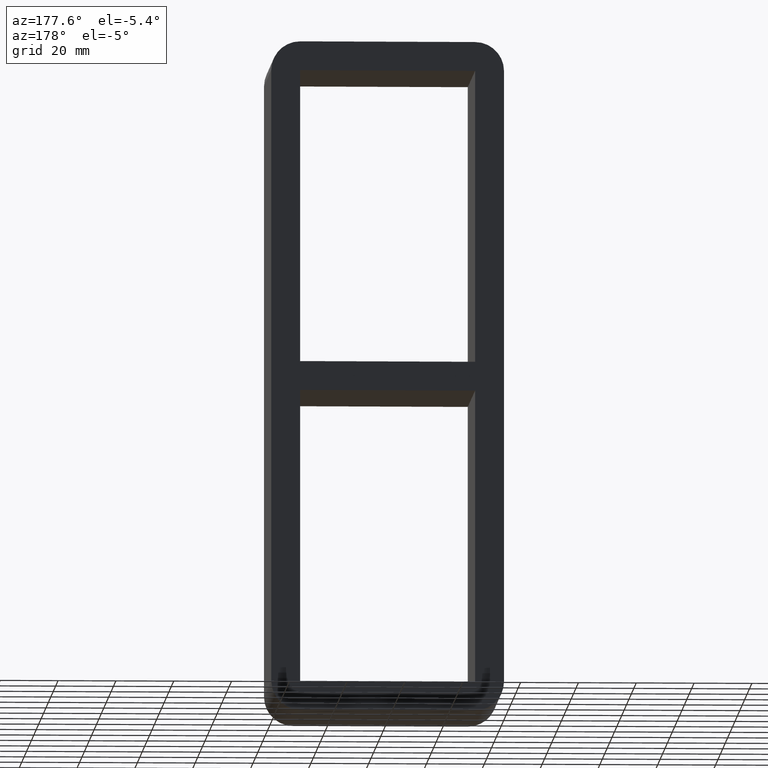
[diagram: clean part render]
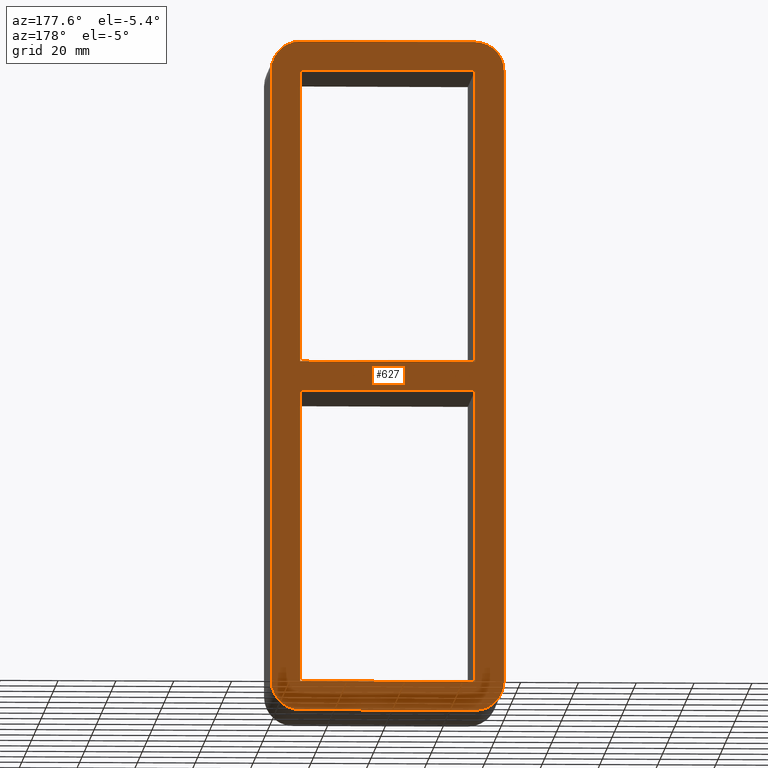
[diagram: same view with one face highlighted and labeled with its STEP entity id]
A machine part, auxiliary view. The second image highlights one B-rep face of the part: STEP entity #627.
In plain terms, the highlighted planar face has unit normal (0, 1, 0).
Its self-contained STEP definition (entity closure, byte-faithful):
#83=CARTESIAN_POINT('',(-30.24999999999967,57.0,-5.000000000009379));
#84=VERTEX_POINT('',#83);
#91=CARTESIAN_POINT('',(30.249999999996358,57.0,-5.000000000009397));
#92=VERTEX_POINT('',#91);
#93=CARTESIAN_POINT('',(30.249999999996362,57.0,-5.000000000009397));
#94=DIRECTION('',(-1.0,0.0,0.0));
#95=VECTOR('',#94,60.499999999996028);
#96=LINE('',#93,#95);
#97=EDGE_CURVE('',#92,#84,#96,.T.);
#123=CARTESIAN_POINT('',(30.249999999999893,57.0,5.0));
#124=VERTEX_POINT('',#123);
#131=CARTESIAN_POINT('',(-30.24999999999967,57.0,5.0));
#132=VERTEX_POINT('',#131);
#133=CARTESIAN_POINT('',(-30.24999999999967,57.0,5.0));
#134=DIRECTION('',(1.0,0.0,0.0));
#135=VECTOR('',#134,60.499999999999559);
#136=LINE('',#133,#135);
#137=EDGE_CURVE('',#132,#124,#136,.T.);
#154=CARTESIAN_POINT('',(-30.250000000000004,57.0,106.00000000000001));
#155=VERTEX_POINT('',#154);
#156=CARTESIAN_POINT('',(-30.25,57.0,106.00000000000003));
#157=DIRECTION('',(0.0,0.0,-1.0));
#158=VECTOR('',#157,101.00000000000003);
#159=LINE('',#156,#158);
#160=EDGE_CURVE('',#155,#132,#159,.T.);
#185=CARTESIAN_POINT('',(30.250000000000004,57.0,-106.00000000000001));
#186=VERTEX_POINT('',#185);
#187=CARTESIAN_POINT('',(30.250000000000004,57.0,-106.00000000000003));
#188=DIRECTION('',(0.0,0.0,1.0));
#189=VECTOR('',#188,100.99999999999062);
#190=LINE('',#187,#189);
#191=EDGE_CURVE('',#186,#92,#190,.T.);
#224=CARTESIAN_POINT('',(30.250000000000004,57.0,106.00000000000001));
#225=VERTEX_POINT('',#224);
#232=CARTESIAN_POINT('',(30.250000000000004,57.0,5.0));
#233=DIRECTION('',(0.0,0.0,1.0));
#234=VECTOR('',#233,101.00000000000001);
#235=LINE('',#232,#234);
#236=EDGE_CURVE('',#124,#225,#235,.T.);
#246=CARTESIAN_POINT('',(30.250000000000004,57.0,-116.00000000000001));
#247=VERTEX_POINT('',#246);
#248=CARTESIAN_POINT('',(40.25,57.0,-106.00000000000001));
#249=VERTEX_POINT('',#248);
#250=CARTESIAN_POINT('',(30.250000000000004,57.0,-106.00000000000001));
#251=DIRECTION('',(0.0,-1.0,0.0));
#252=DIRECTION('',(0.707106781186547,0.0,-0.707106781186547));
#253=AXIS2_PLACEMENT_3D('',#250,#251,#252);
#254=CIRCLE('',#253,9.999999999999998);
#255=EDGE_CURVE('',#247,#249,#254,.T.);
#384=CARTESIAN_POINT('',(40.25,57.0,106.00000000000001));
#385=VERTEX_POINT('',#384);
#386=CARTESIAN_POINT('',(40.25,57.0,106.00000000000001));
#387=DIRECTION('',(0.0,0.0,-1.0));
#388=VECTOR('',#387,212.00000000000003);
#389=LINE('',#386,#388);
#390=EDGE_CURVE('',#385,#249,#389,.T.);
#409=CARTESIAN_POINT('',(30.250000000000004,57.0,116.00000000000001));
#410=VERTEX_POINT('',#409);
#411=CARTESIAN_POINT('',(30.250000000000004,57.0,106.00000000000001));
#412=DIRECTION('',(0.0,-1.0,0.0));
#413=DIRECTION('',(0.707106781186547,0.0,0.707106781186547));
#414=AXIS2_PLACEMENT_3D('',#411,#412,#413);
#415=CIRCLE('',#414,9.999999999999998);
#416=EDGE_CURVE('',#385,#410,#415,.T.);
#432=CARTESIAN_POINT('',(-40.25,57.0,-106.00000000000001));
#433=VERTEX_POINT('',#432);
#434=CARTESIAN_POINT('',(-30.250000000000004,57.0,-116.00000000000001));
#435=VERTEX_POINT('',#434);
#436=CARTESIAN_POINT('',(-30.250000000000004,57.0,-106.00000000000001));
#437=DIRECTION('',(0.0,-1.0,0.0));
#438=DIRECTION('',(-0.707106781186547,0.0,-0.707106781186547));
#439=AXIS2_PLACEMENT_3D('',#436,#437,#438);
#440=CIRCLE('',#439,9.999999999999998);
#441=EDGE_CURVE('',#433,#435,#440,.T.);
#466=CARTESIAN_POINT('',(-40.25,57.0,106.00000000000001));
#467=VERTEX_POINT('',#466);
#474=CARTESIAN_POINT('',(-40.25,57.0,-106.00000000000001));
#475=DIRECTION('',(0.0,0.0,1.0));
#476=VECTOR('',#475,212.00000000000003);
#477=LINE('',#474,#476);
#478=EDGE_CURVE('',#433,#467,#477,.T.);
#488=CARTESIAN_POINT('',(-30.250000000000004,57.0,116.00000000000001));
#489=VERTEX_POINT('',#488);
#490=CARTESIAN_POINT('',(-30.250000000000004,57.0,106.00000000000001));
#491=DIRECTION('',(0.0,-1.0,0.0));
#492=DIRECTION('',(-0.707106781186547,0.0,0.707106781186547));
#493=AXIS2_PLACEMENT_3D('',#490,#491,#492);
#494=CIRCLE('',#493,9.999999999999998);
#495=EDGE_CURVE('',#489,#467,#494,.T.);
#514=CARTESIAN_POINT('',(-30.25,57.0,116.00000000000001));
#515=DIRECTION('',(1.0,0.0,0.0));
#516=VECTOR('',#515,60.5);
#517=LINE('',#514,#516);
#518=EDGE_CURVE('',#489,#410,#517,.T.);
#533=CARTESIAN_POINT('',(30.250000000000007,57.0,106.00000000000001));
#534=DIRECTION('',(-1.0,0.0,0.0));
#535=VECTOR('',#534,60.500000000000014);
#536=LINE('',#533,#535);
#537=EDGE_CURVE('',#225,#155,#536,.T.);
#549=CARTESIAN_POINT('',(-30.250000000000004,57.0,-106.00000000000001));
#550=VERTEX_POINT('',#549);
#557=CARTESIAN_POINT('',(-30.25,57.0,-5.000000000009379));
#558=DIRECTION('',(0.0,0.0,-1.0));
#559=VECTOR('',#558,100.99999999999064);
#560=LINE('',#557,#559);
#561=EDGE_CURVE('',#84,#550,#560,.T.);
#574=CARTESIAN_POINT('',(-30.250000000000007,57.0,-106.00000000000001));
#575=DIRECTION('',(1.0,0.0,0.0));
#576=VECTOR('',#575,60.500000000000014);
#577=LINE('',#574,#576);
#578=EDGE_CURVE('',#550,#186,#577,.T.);
#591=CARTESIAN_POINT('',(30.25,57.0,-116.00000000000001));
#592=DIRECTION('',(-1.0,0.0,0.0));
#593=VECTOR('',#592,60.5);
#594=LINE('',#591,#593);
#595=EDGE_CURVE('',#247,#435,#594,.T.);
#600=CARTESIAN_POINT('',(0.0,57.0,0.0));
#601=DIRECTION('',(0.0,1.0,0.0));
#602=DIRECTION('',(0.0,0.0,1.0));
#603=AXIS2_PLACEMENT_3D('',#600,#601,#602);
#604=PLANE('',#603);
#605=ORIENTED_EDGE('',*,*,#255,.F.);
#606=ORIENTED_EDGE('',*,*,#595,.T.);
#607=ORIENTED_EDGE('',*,*,#441,.F.);
#608=ORIENTED_EDGE('',*,*,#478,.T.);
#609=ORIENTED_EDGE('',*,*,#495,.F.);
#610=ORIENTED_EDGE('',*,*,#518,.T.);
#611=ORIENTED_EDGE('',*,*,#416,.F.);
#612=ORIENTED_EDGE('',*,*,#390,.T.);
#613=EDGE_LOOP('',(#605,#606,#607,#608,#609,#610,#611,#612));
#614=FACE_OUTER_BOUND('',#613,.T.);
#615=ORIENTED_EDGE('',*,*,#561,.T.);
#616=ORIENTED_EDGE('',*,*,#578,.T.);
#617=ORIENTED_EDGE('',*,*,#191,.T.);
#618=ORIENTED_EDGE('',*,*,#97,.T.);
#619=EDGE_LOOP('',(#615,#616,#617,#618));
#620=FACE_BOUND('',#619,.T.);
#621=ORIENTED_EDGE('',*,*,#137,.T.);
#622=ORIENTED_EDGE('',*,*,#236,.T.);
#623=ORIENTED_EDGE('',*,*,#537,.T.);
#624=ORIENTED_EDGE('',*,*,#160,.T.);
#625=EDGE_LOOP('',(#621,#622,#623,#624));
#626=FACE_BOUND('',#625,.T.);
#627=ADVANCED_FACE('',(#614,#620,#626),#604,.T.);